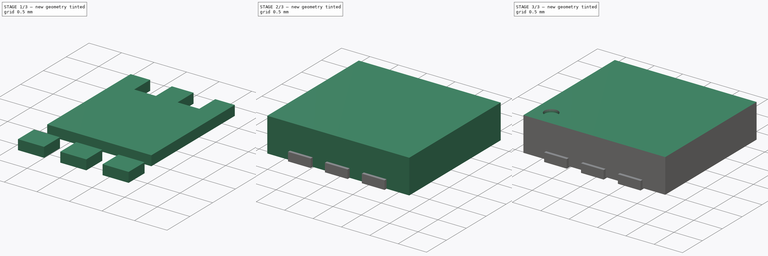
[diagram: build sequence overview — one tinted view per stage of 3, left to right]
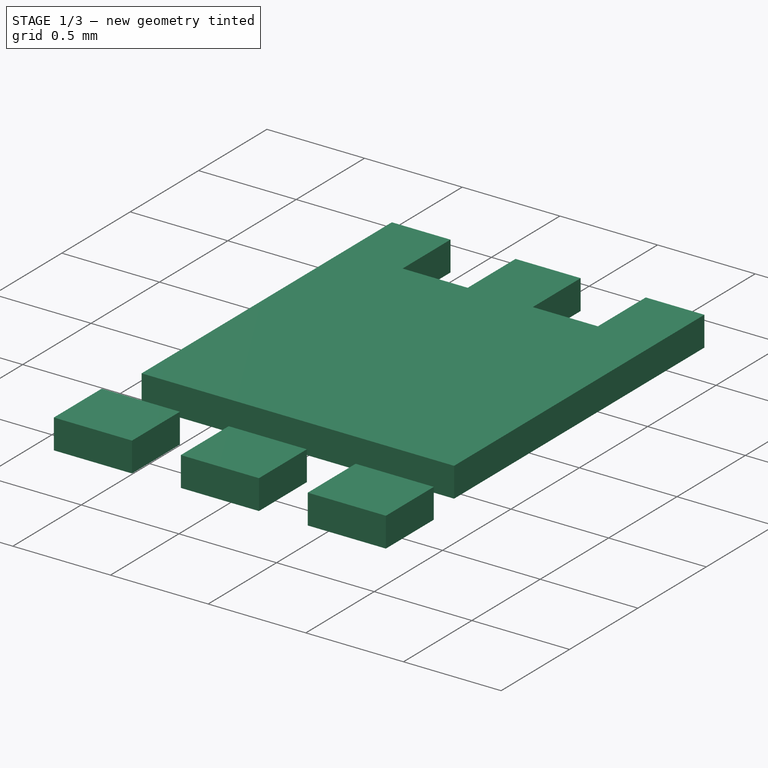
[diagram: stage 1 of 3 — iso view after this stage's code; geometry added in this stage tinted green]
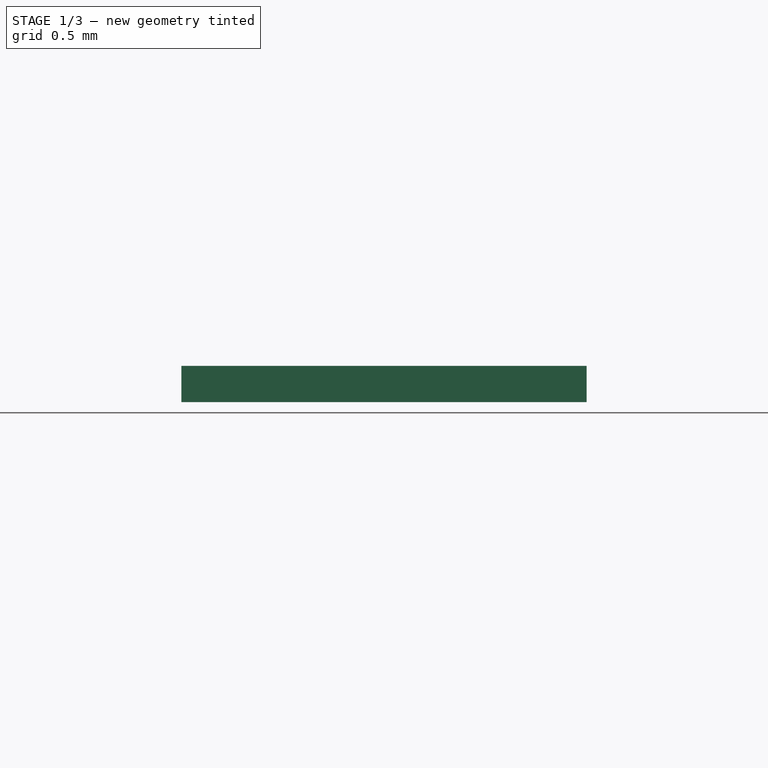
[diagram: stage 1 of 3 — front view after this stage's code; geometry added in this stage tinted green]
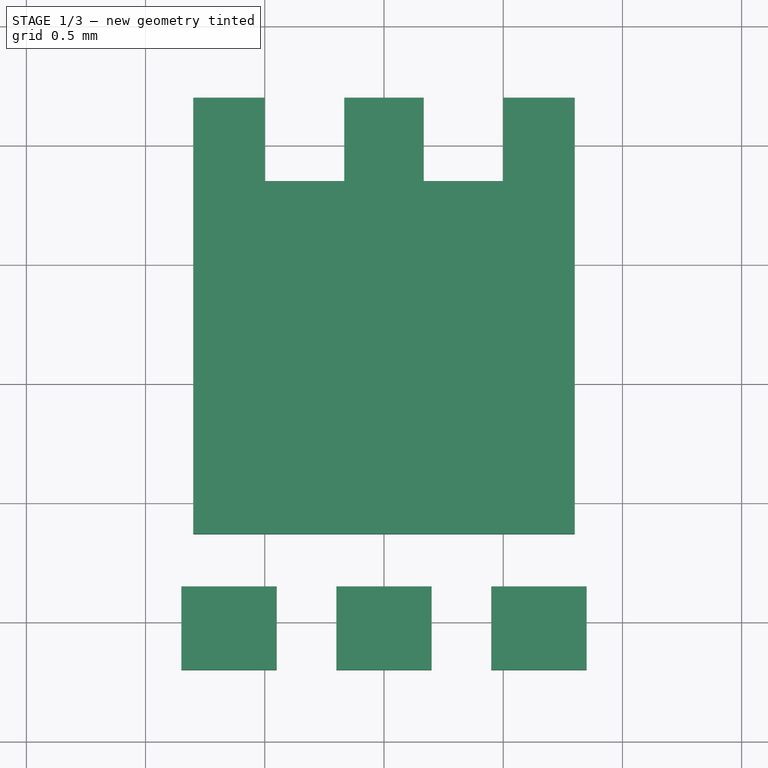
[diagram: stage 1 of 3 — top view after this stage's code; geometry added in this stage tinted green]
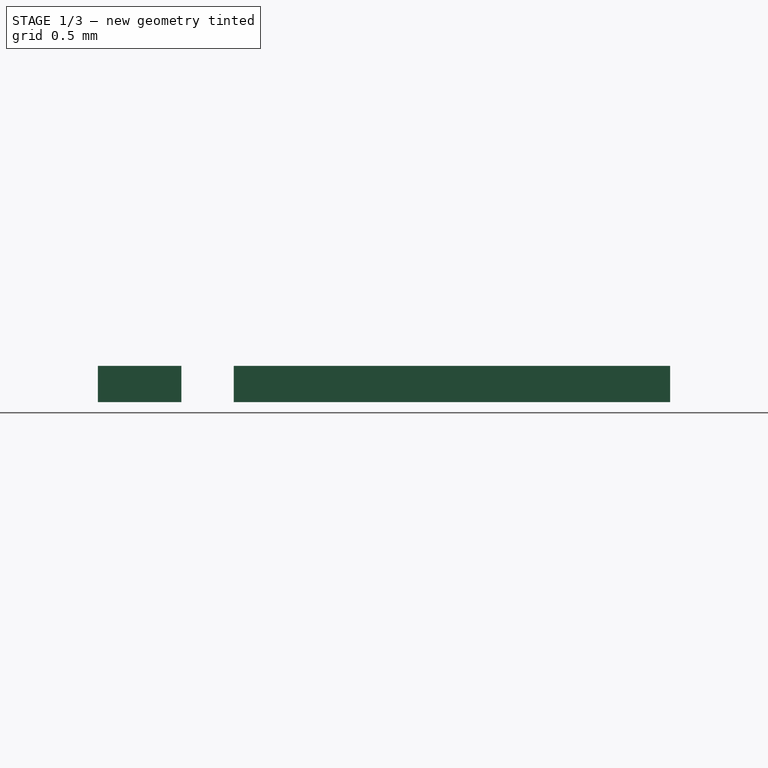
[diagram: stage 1 of 3 — right view after this stage's code; geometry added in this stage tinted green]
FCSTD DOCUMENT  (FreeCAD 0.16R6703 (Git))
Label: DFN-2523-6
License: All rights reserved
LicenseURL: http://en.wikipedia.org/wiki/All_rights_reserved
objects: Sketcher::SketchObject×3, PartDesign::Pad×2, Part::FeaturePython×2, PartDesign::Pocket×1, App::DocumentObjectGroup×1
note: 11 computed .brp shape members not serialized (recipe doc carries the construction recipe); baked Part::Feature solids carry a one-line shape summary decoded from their .brp

FEATURE [Sketcher::SketchObject] Sketch002
  sketch-geometry (24):
    g0: LineSegment StartX=-0.85 StartY=-0.85 StartZ=0 EndX=-0.45 EndY=-0.85 EndZ=0
    g1: LineSegment StartX=-0.45 StartY=-0.85 StartZ=0 EndX=-0.45 EndY=-1.2 EndZ=0
    g2: LineSegment StartX=-0.45 StartY=-1.2 StartZ=0 EndX=-0.85 EndY=-1.2 EndZ=0
    g3: LineSegment StartX=-0.85 StartY=-1.2 StartZ=0 EndX=-0.85 EndY=-0.85 EndZ=0
    g4: LineSegment StartX=-0.2 StartY=-0.85 StartZ=0 EndX=0.2 EndY=-0.85 EndZ=0
    g5: LineSegment StartX=0.2 StartY=-0.85 StartZ=0 EndX=0.2 EndY=-1.2 EndZ=0
    g6: LineSegment StartX=0.2 StartY=-1.2 StartZ=0 EndX=-0.2 EndY=-1.2 EndZ=0
    g7: LineSegment StartX=-0.2 StartY=-1.2 StartZ=0 EndX=-0.2 EndY=-0.85 EndZ=0
    g8: LineSegment StartX=0.45 StartY=-0.85 StartZ=0 EndX=0.85 EndY=-0.85 EndZ=0
    g9: LineSegment StartX=0.85 StartY=-0.85 StartZ=0 EndX=0.85 EndY=-1.2 EndZ=0
    g10: LineSegment StartX=0.85 StartY=-1.2 StartZ=0 EndX=0.45 EndY=-1.2 EndZ=0
    g11: LineSegment StartX=0.45 StartY=-1.2 StartZ=0 EndX=0.45 EndY=-0.85 EndZ=0
    g12: LineSegment StartX=-0.8 StartY=-0.63 StartZ=0 EndX=-0.8 EndY=1.2 EndZ=0
    g13: LineSegment StartX=-0.8 StartY=1.2 StartZ=0 EndX=-0.5 EndY=1.2 EndZ=0
    g14: LineSegment StartX=-0.5 StartY=1.2 StartZ=0 EndX=-0.5 EndY=0.85 EndZ=0
    g15: LineSegment StartX=-0.5 StartY=0.85 StartZ=0 EndX=-0.166667 EndY=0.85 EndZ=0
    g16: LineSegment StartX=-0.166667 StartY=0.85 StartZ=0 EndX=-0.166667 EndY=1.2 EndZ=0
    g17: LineSegment StartX=-0.166667 StartY=1.2 StartZ=0 EndX=0.166667 EndY=1.2 EndZ=0
    g18: LineSegment StartX=0.166667 StartY=1.2 StartZ=0 EndX=0.166667 EndY=0.85 EndZ=0
    g19: LineSegment StartX=0.166667 StartY=0.85 StartZ=0 EndX=0.5 EndY=0.85 EndZ=0
    g20: LineSegment StartX=0.5 StartY=0.85 StartZ=0 EndX=0.5 EndY=1.2 EndZ=0
    g21: LineSegment StartX=0.5 StartY=1.2 StartZ=0 EndX=0.8 EndY=1.2 EndZ=0
    g22: LineSegment StartX=0.8 StartY=1.2 StartZ=0 EndX=0.8 EndY=-0.63 EndZ=0
    g23: LineSegment StartX=0.8 StartY=-0.63 StartZ=0 EndX=-0.8 EndY=-0.63 EndZ=0
  constraints (68):
    c: Coincident(g0,g1)
    c: Coincident(g1,g2)
    c: Coincident(g2,g3)
    c: Coincident(g3,g0)
    c: Horizontal(g0)
    c: Horizontal(g2)
    c: Vertical(g1)
    c: Vertical(g3)
    c: Coincident(g4,g5)
    c: Coincident(g5,g6)
    c: Coincident(g6,g7)
    c: Coincident(g7,g4)
    c: Horizontal(g4)
    c: Horizontal(g6)
    c: Vertical(g5)
    c: Vertical(g7)
    c: Coincident(g8,g9)
    c: Coincident(g9,g10)
    c: Coincident(g10,g11)
    c: Coincident(g11,g8)
    c: Horizontal(g8)
    c: Horizontal(g10)
    c: Vertical(g9)
    c: Vertical(g11)
    c: Vertical(g12)
    c: Coincident(g12,g13)
    c: Horizontal(g13)
    c: Coincident(g13,g14)
    c: Vertical(g14)
    c: Coincident(g14,g15)
    c: Horizontal(g15)
    c: Coincident(g15,g16)
    c: Vertical(g16)
    c: Coincident(g16,g17)
    c: Horizontal(g17)
    c: Coincident(g17,g18)
    c: Vertical(g18)
    c: Coincident(g18,g19)
    c: Horizontal(g19)
    c: Coincident(g19,g20)
    c: Vertical(g20)
    c: Coincident(g20,g21)
    c: Horizontal(g21)
    c: Coincident(g21,g22)
    c: Vertical(g22)
    c: Coincident(g22,g23)
    c: Horizontal(g23)
    c: Coincident(g12,g23)
    c: DistanceX(g4,g4) = 0.4
    c: Symmetric(g4,g4,g-2)
    c: DistanceX(g1,g5) = 0.65
    c: Equal(g0,g4)
    c: DistanceY(g7,g7) = 0.35
    c: Equal(g1,g7)
    c: PointOnObject(g1,g6)
    c: DistanceY(g2,g-1) = 1.2
    c: DistanceY(g12,g12) = 1.83
    c: DistanceY(g14,g14) = 0.35
    c: DistanceY(g-1,g12) = 1.2
    c: DistanceX(g12,g21) = 1.6
    c: Symmetric(g17,g16,g-2)
    c: DistanceX(g12,g13) = 0.3
    c: Symmetric(g21,g12,g-2)
    c: Symmetric(g19,g14,g-2)
    c: PointOnObject(g16,g13)
    c: Equal(g17,g15)
    c: Symmetric(g10,g1,g-2)
    c: Symmetric(g8,g0,g-2)
FEATURE [PartDesign::Pad] Pad001  label="pads-src"
  Length = 0.152
  Length2 = 100
  Sketch = -> Sketch002
  Type = 0
FEATURE [App::DocumentObjectGroup] Group  label="src"
  Group = -> [Pad,Pocket,Pad001]
FEATURE [Part::FeaturePython] Clone001  label="pads"  # Draft clone (typed FeaturePython)
  Objects = -> [Pad001]
  Scale = (1,1,1)
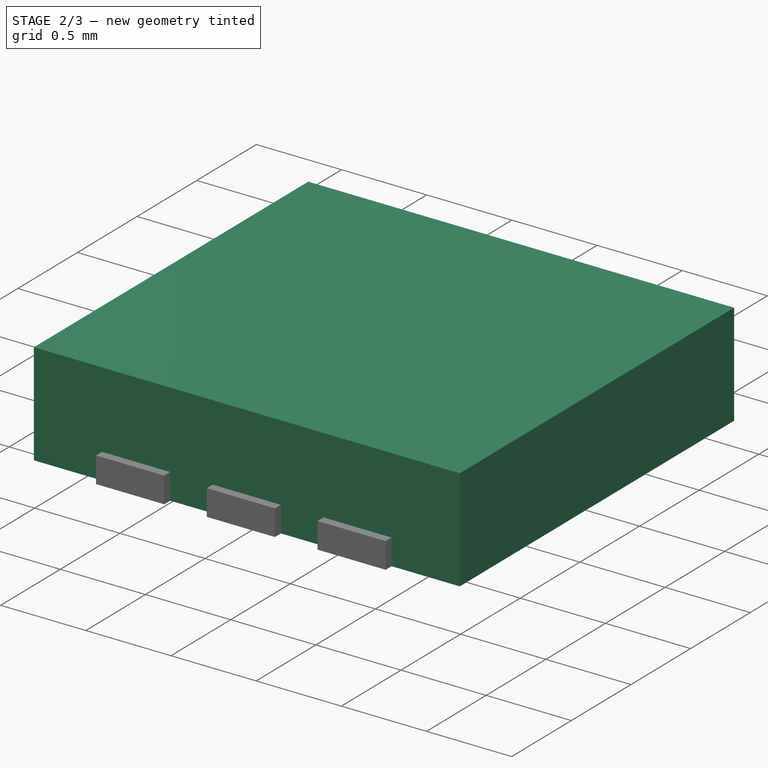
[diagram: stage 2 of 3 — iso view after this stage's code; geometry added in this stage tinted green]
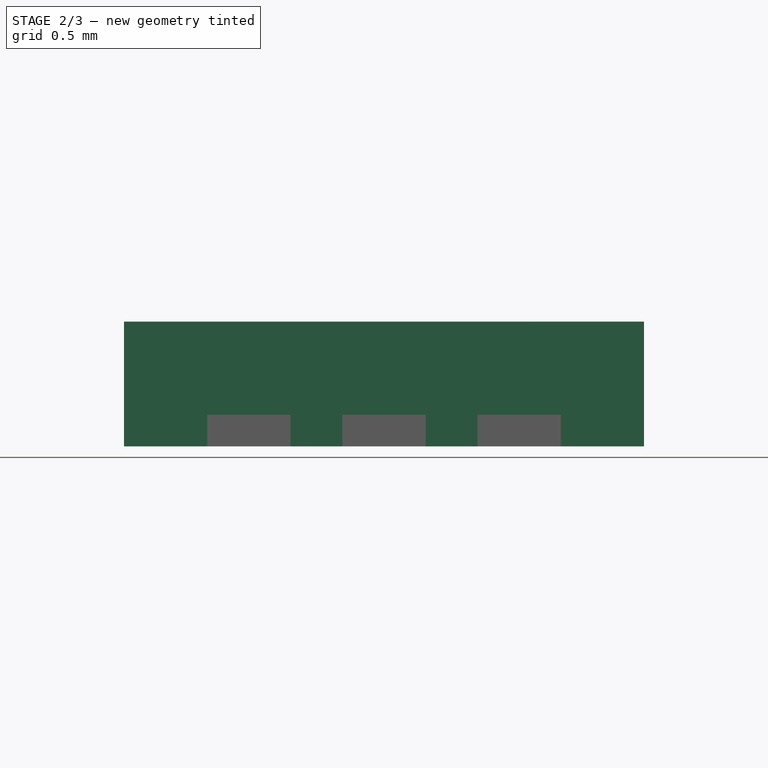
[diagram: stage 2 of 3 — front view after this stage's code; geometry added in this stage tinted green]
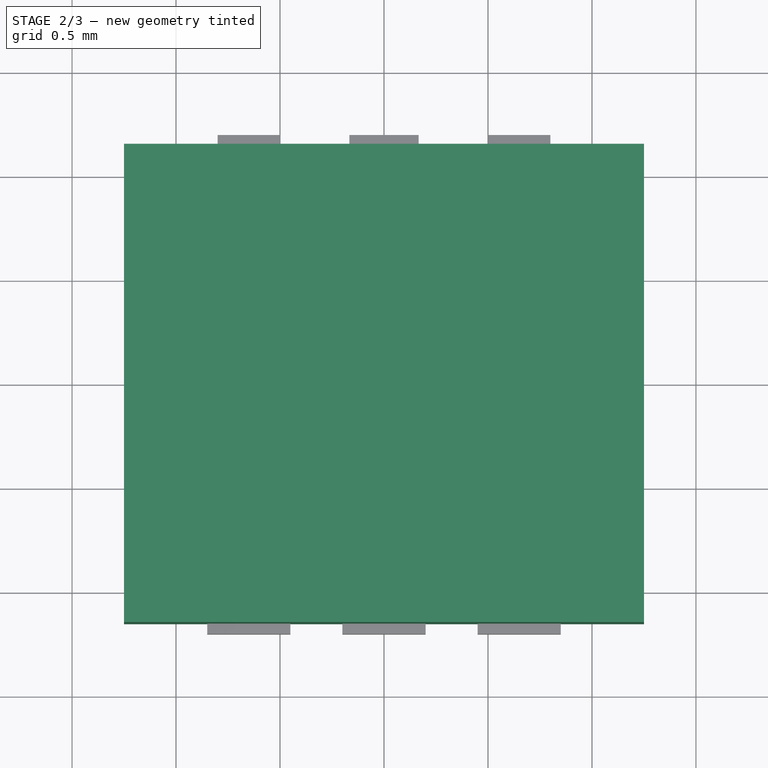
[diagram: stage 2 of 3 — top view after this stage's code; geometry added in this stage tinted green]
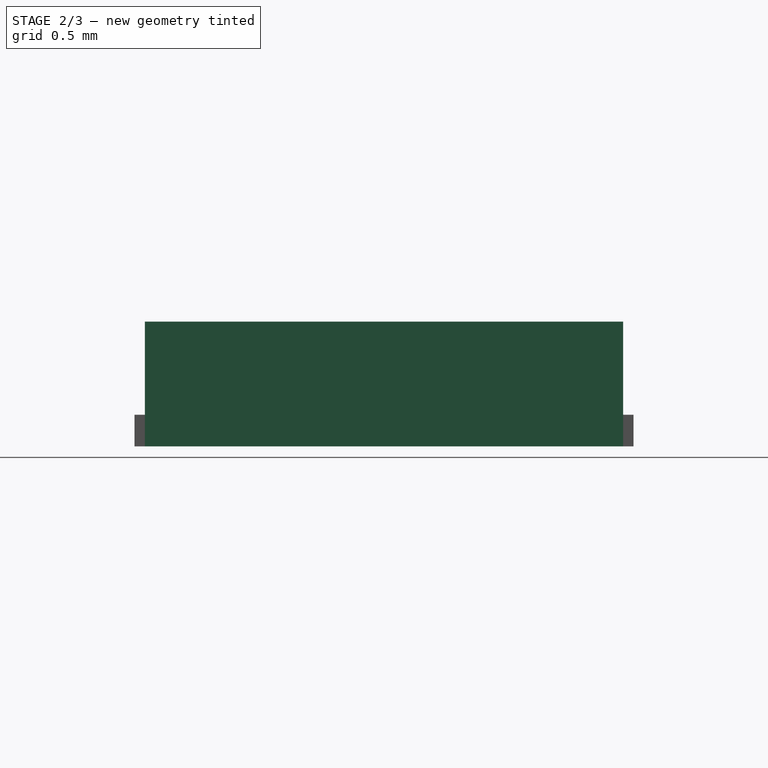
[diagram: stage 2 of 3 — right view after this stage's code; geometry added in this stage tinted green]
FEATURE [Sketcher::SketchObject] Sketch
  sketch-geometry (4):
    g0: LineSegment StartX=-1.25 StartY=1.15 StartZ=0 EndX=1.25 EndY=1.15 EndZ=0
    g1: LineSegment StartX=1.25 StartY=1.15 StartZ=0 EndX=1.25 EndY=-1.15 EndZ=0
    g2: LineSegment StartX=1.25 StartY=-1.15 StartZ=0 EndX=-1.25 EndY=-1.15 EndZ=0
    g3: LineSegment StartX=-1.25 StartY=-1.15 StartZ=0 EndX=-1.25 EndY=1.15 EndZ=0
  constraints (11):
    c: Coincident(g0,g1)
    c: Coincident(g1,g2)
    c: Coincident(g2,g3)
    c: Coincident(g3,g0)
    c: Horizontal(g0)
    c: Horizontal(g2)
    c: Vertical(g1)
    c: Vertical(g3)
    c: Symmetric(g0,g1,g-1)
    c: DistanceX(g0,g0) = 2.5
    c: DistanceY(g1,g1) = 2.3
FEATURE [PartDesign::Pad] Pad
  Length = 0.6
  Length2 = 100
  Sketch = -> Sketch
  Type = 0
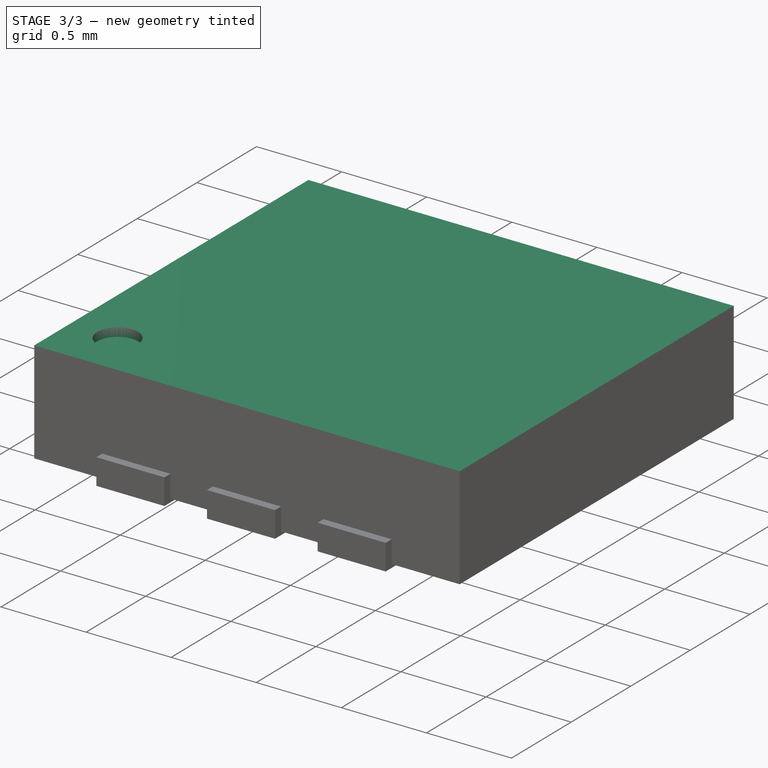
[diagram: stage 3 of 3 — iso view after this stage's code; geometry added in this stage tinted green]
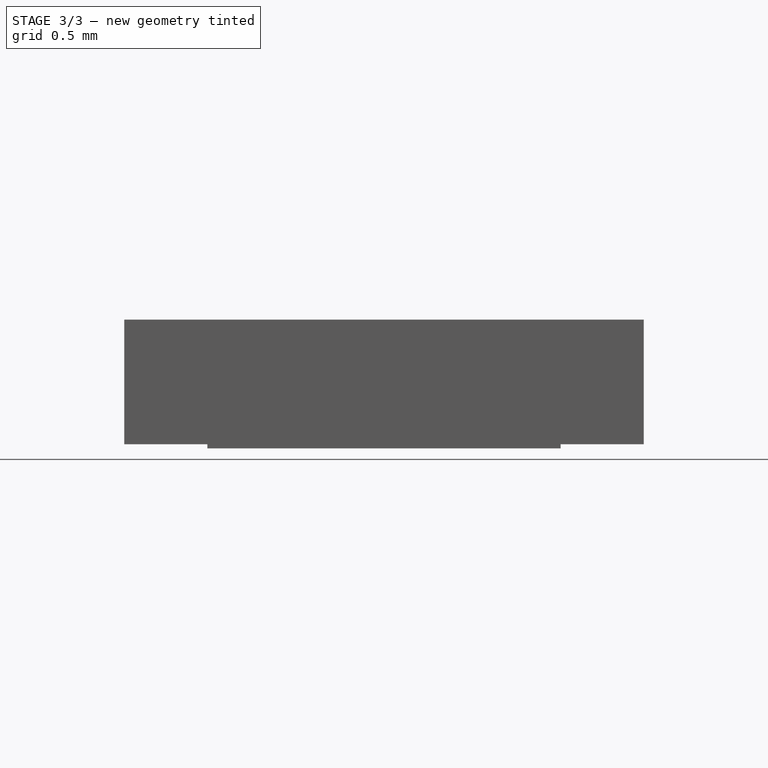
[diagram: stage 3 of 3 — front view after this stage's code; geometry added in this stage tinted green]
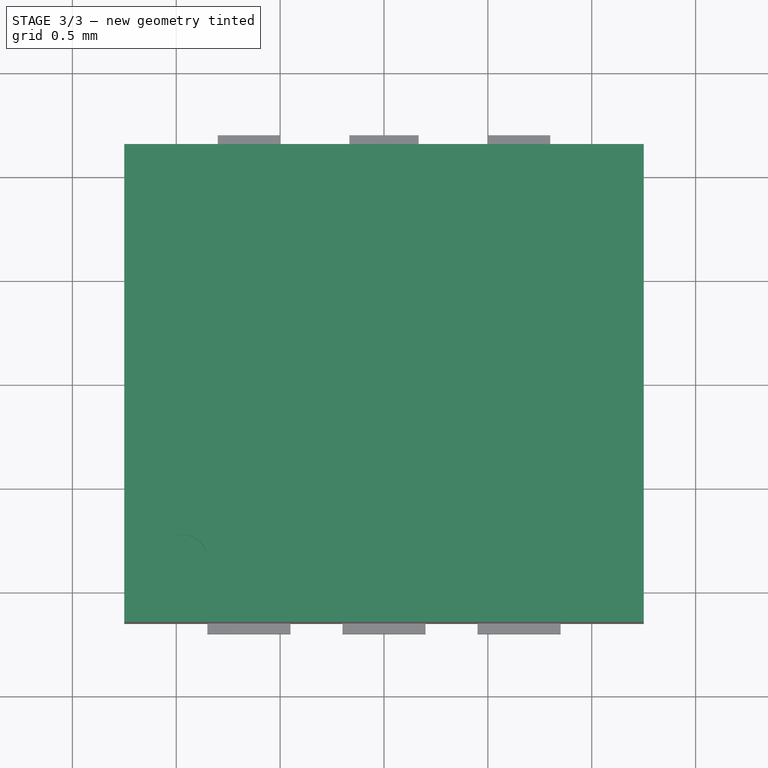
[diagram: stage 3 of 3 — top view after this stage's code; geometry added in this stage tinted green]
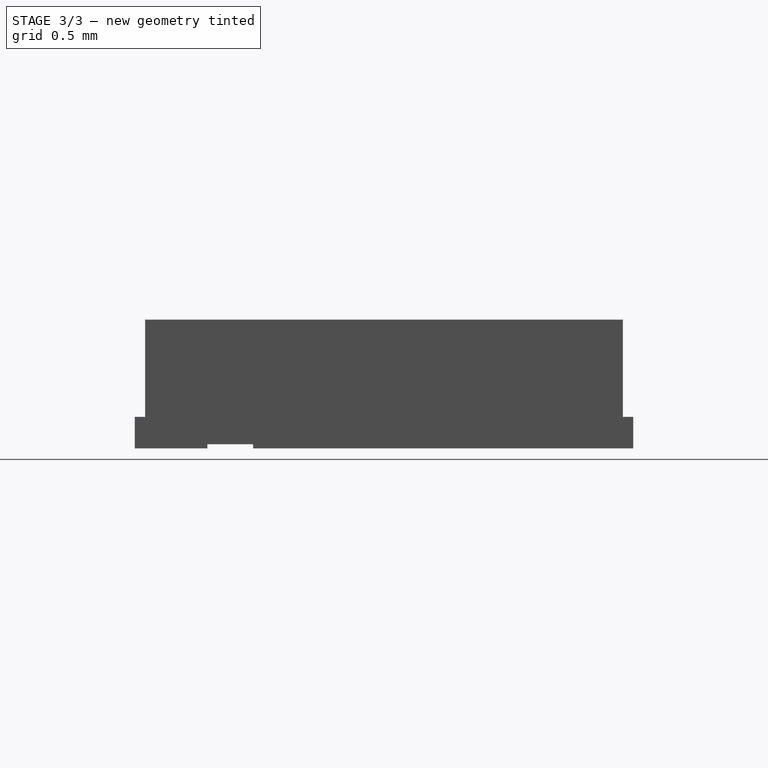
[diagram: stage 3 of 3 — right view after this stage's code; geometry added in this stage tinted green]
FEATURE [Sketcher::SketchObject] Sketch001
  Placement = pos=(0,0,0.6) rot=(0,0,1;0rad)
  Support = -> Pad [Face6]
  sketch-geometry (1):
    g0: Circle CenterX=-0.97 CenterY=-0.85 CenterZ=0 NormalX=0 NormalY=0 NormalZ=1 Radius=0.12
  constraints (3):
    c: Radius(g0) = 0.12
    c: DistanceX(g0,g-1) = 0.97
    c: DistanceY(g-1,g0) = -0.85
FEATURE [PartDesign::Pocket] Pocket  label="body-src"
  Length = 0.05
  Sketch = -> Sketch001
  Type = 0
FEATURE [Part::FeaturePython] Clone  label="body"  # Draft clone (typed FeaturePython)
  Objects = -> [Pocket]
  Placement = pos=(0,0,0.02) rot=(0,0,1;0rad)
  Scale = (1,1,1)
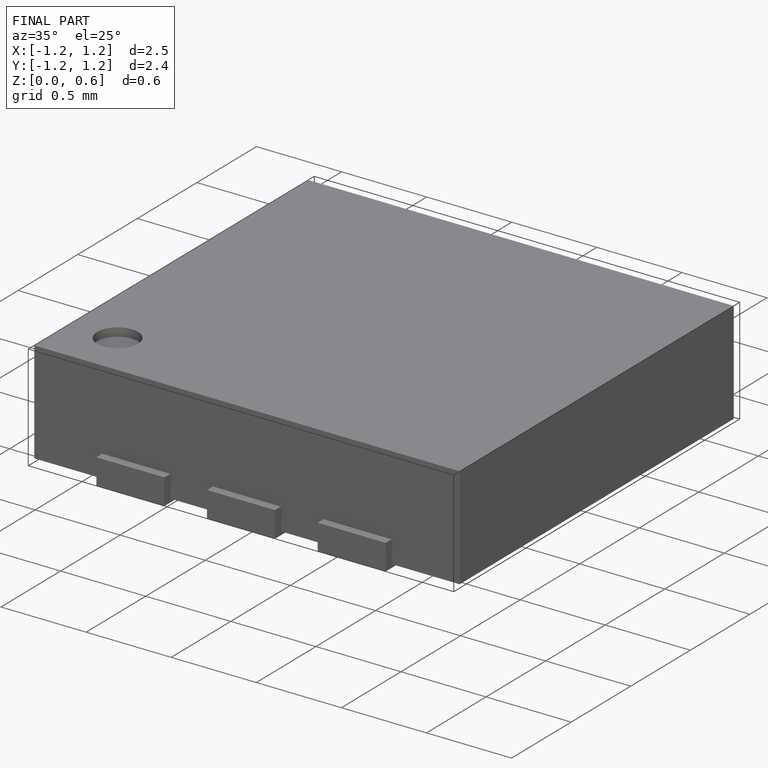
[diagram: finished part — iso view with bounding-box wireframe]
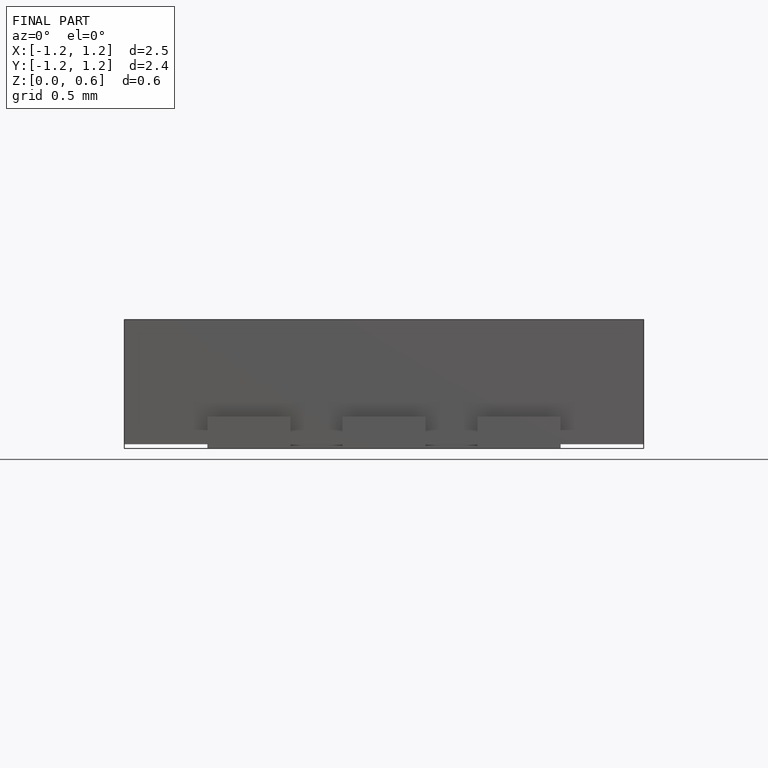
[diagram: finished part — front view with bounding-box wireframe]
